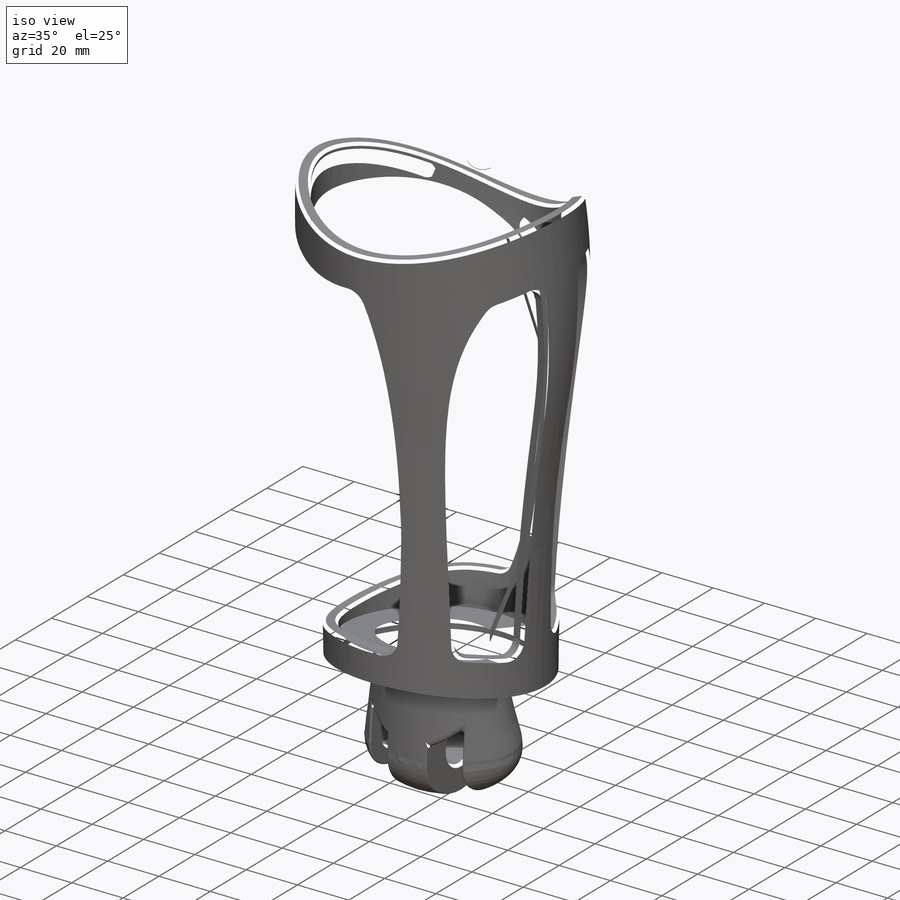
[diagram: iso view]
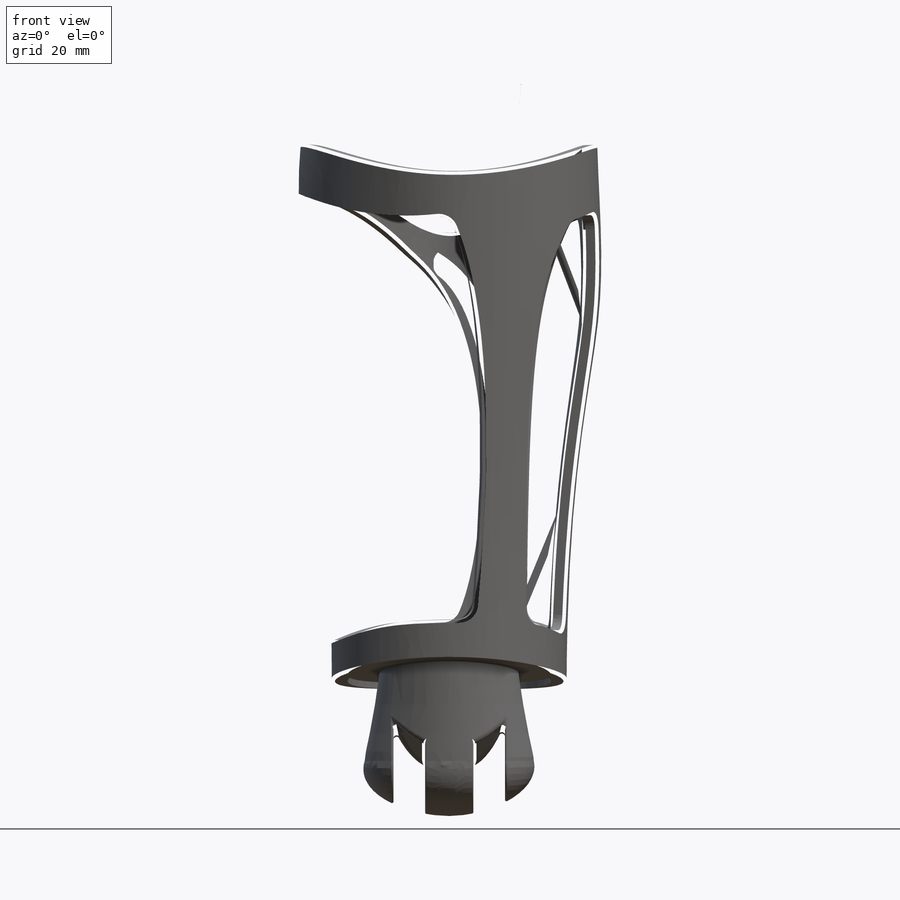
[diagram: front view]
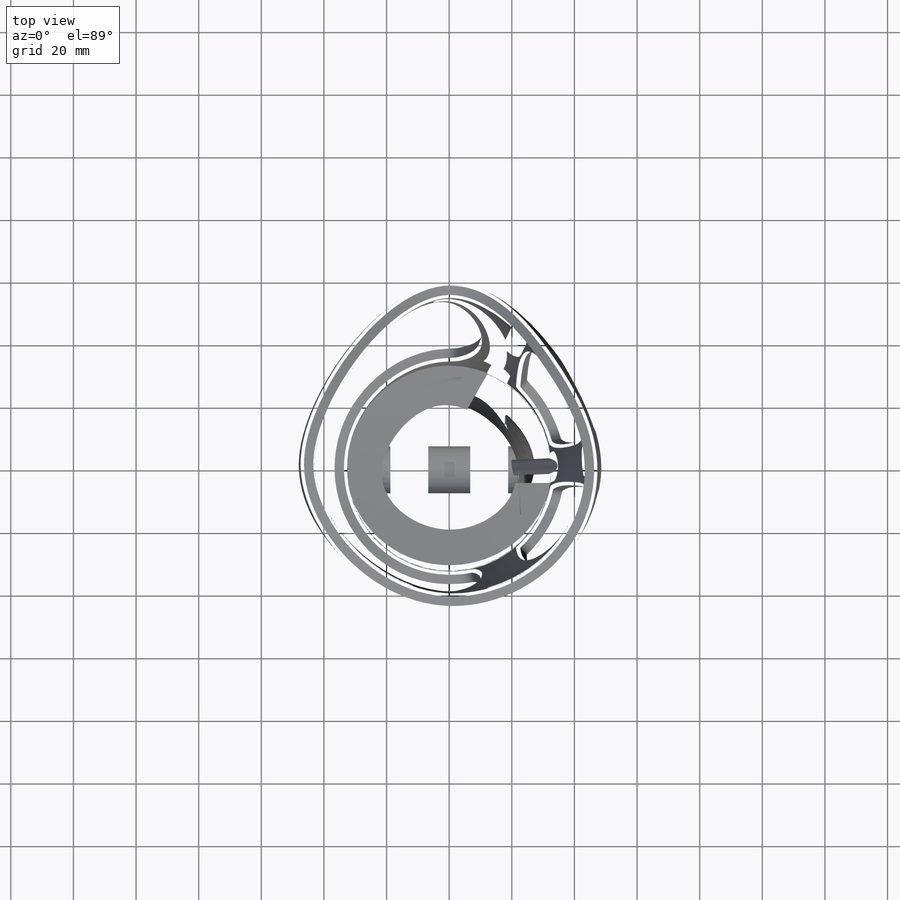
[diagram: top view]
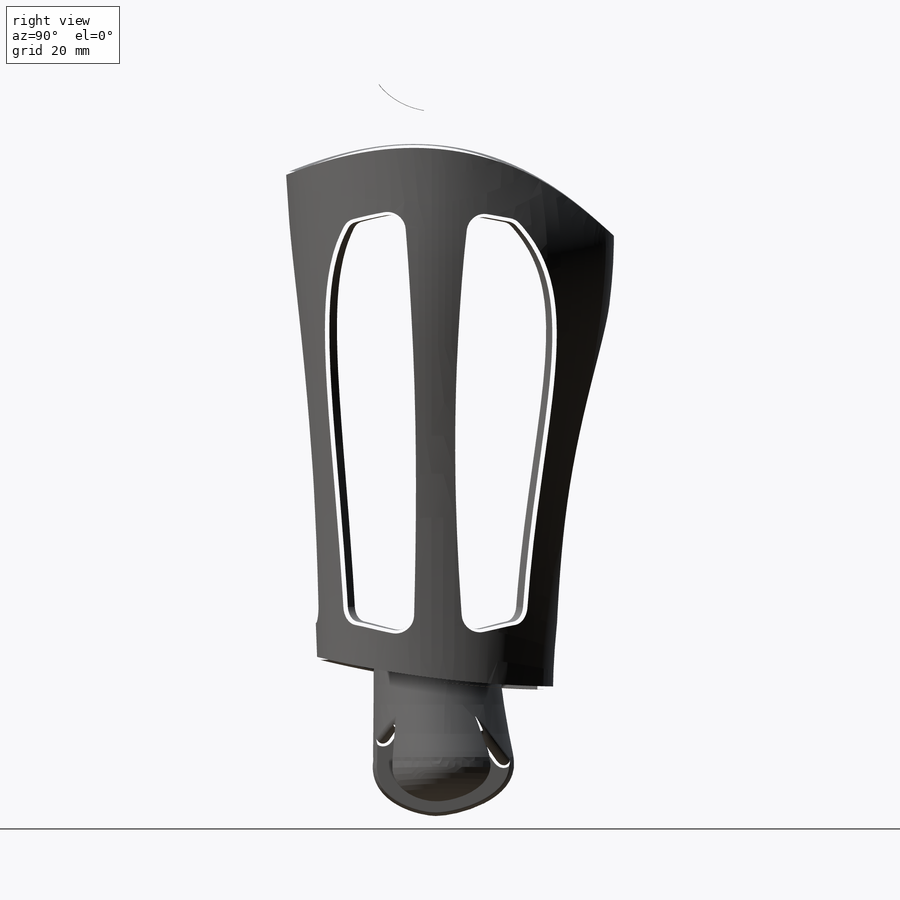
[diagram: right view]
SOLIDWORKS PART (.sldprt)
format: sldprt  version: not decoded by parser v0  size: 14,455,296 bytes
history: native  units: mm
features: sketch x73, plane x35, cut_extrude x9, cut_revolve x4, extrude x4, fillet x4, sweep x3, move_body x2, surface_op x2, material x1, boolean_combine x1, chamfer x1 + 8 further entries (+21 scaffold rows collapsed; 9 parser-record rows omitted)
feature tree (177):
  scaffold x21  (default folders/planes/origin — collapsed)
  material  "Material <nicht festgelegt>"
  plane  "Vorne"
  plane  "Oben"
  plane  "Rechts"
  plane  "Vorne-p-bein-rechts-v02"
  plane  "Oben-p-bein-rechts-v02"
  plane  "Rechts-p-bein-rechts-v02"
  plane  "Vorne-p-geometriemodel-bein-rechts-v02-p-bein-rechts-v02"
  plane  "Oben-p-geometriemodel-bein-rechts-v02-p-bein-rechts-v02"
  plane  "Rechts-p-geometriemodel-bein-rechts-v02-p-bein-rechts-v02"  Offset=60mm
  sketch  "Skizze1-p-geometriemodel-bein-rechts-v02-p-bein-rechts-v02"  dims[D1=20.0mm]
  sketch  "Skizze3-p-geometriemodel-bein-rechts-v02-p-bein-rechts-v02"  dims[D1=178.0mm]
  plane  "Ebene1-p-geometriemodel-bein-rechts-v02-p-bein-rechts-v02"
  "3D-Skizze3-p-geometriemodel-bein-rechts-v02-p-bein-rechts-v02"
  plane  "Ebene2-p-geometriemodel-bein-rechts-v02-p-bein-rechts-v02"
  plane  "Ebene3-p-geometriemodel-bein-rechts-v02-p-bein-rechts-v02"
  plane  "Ebene45-p-bein-rechts-v02"
  sketch  "Skizze50-p-bein-rechts-v02"  dims[D1=50.0mm D2=50.0mm D3=30.0mm D4=30.0mm D5=30.0mm D6=30.0mm]
  sketch  "Skizze51-p-bein-rechts-v02"  dims[D1=10.0mm D2=25.0mm D3=15.0mm D4=20.0mm D5=42.0mm D6=15.0mm]
  plane  "Ebene46-p-bein-rechts-v02"
  plane  "Ebene47-p-bein-rechts-v02"
  sketch  "Skizze52-p-bein-rechts-v02"
  sketch  "Skizze53-p-bein-rechts-v02"
  sketch  "Skizze54-p-bein-rechts-v02"  dims[D1=35.0mm D2=25.0mm]
  sketch  "Skizze55-p-bein-rechts-v02"  dims[D1=20.0mm]
  sketch  "Skizze56-p-bein-rechts-v02"  dims[D1=10.0mm D2=5.0mm D3=25.0mm D4=70.0mm D5=25.0mm D6=40.0mm D7=15.0mm]
  "3D-Skizze16-p-bein-rechts-v02"
  plane  "Ebene48-p-bein-rechts-v02"
  sketch  "Skizze57-p-bein-rechts-v02"  dims[D1=30.0mm D2=35.0mm D3=30.0mm D4=25.0mm]
  "3D-Skizze17-p-bein-rechts-v02"
  sketch  "Skizze58-p-bein-rechts-v02"  dims[c1.D4=~110.057695mm c1.D1=35.0mm c1.D2=35.0mm c2.D2=35.0deg c2.D3=70.0mm]
  sketch  "Skizze59-p-bein-rechts-v02"  dims[c1.D1=268.4mm c2.D1=60.0deg c2.D2=40.0mm c2.D3=268.4mm c3.D3=55.0deg]
  sketch  "Skizze60-p-bein-rechts-v02"  dims[D1=27.0mm D2=27.0mm D3=25.0mm D4=20.0mm]
  sketch  "Skizze61-p-bein-rechts-v02"  dims[D1=15.0mm D2=85.0mm]
  sketch  "Skizze62-p-bein-rechts-v02"  dims[D1=15.0mm]
  sketch  "Skizze63-p-bein-rechts-v02"  dims[c1.D1=85.0mm c1.D2=85.0mm c2.D1=42.5mm]
  "p-bein-rechts-v02"
  parser-record x9  (decoder bookkeeping rows leaked as tree rows — omitted from the tree; the rows remain in map.json)
  plane  "Vorne-p-untrerschenkel-hülle-v02"
  plane  "Oben-p-untrerschenkel-hülle-v02"
  plane  "Rechts-p-untrerschenkel-hülle-v02"
  plane  "Vorne-p-oberschenkel-hülle-v02-p-untrerschenkel-hülle-v02"
  plane  "Oben-p-oberschenkel-hülle-v02-p-untrerschenkel-hülle-v02"
  plane  "Rechts-p-oberschenkel-hülle-v02-p-untrerschenkel-hülle-v02"
  plane  "Ebene26-p-oberschenkel-hülle-v02-p-untrerschenkel-hülle-v02"
  plane  "Ebene27-p-oberschenkel-hülle-v02-p-untrerschenkel-hülle-v02"
  plane  "Ebene26-p-untrerschenkel-hülle-v02"
  plane  "Ebene58-p-untrerschenkel-hülle-v02"  Offset=60mm
  sketch  "Skizze44-p-oberschenkel-hülle-v02-p-untrerschenkel-hülle-v02"
  sketch  "Skizze45-p-oberschenkel-hülle-v02-p-untrerschenkel-hülle-v02"  dims[D1=80.0mm]
  sketch  "Skizze46-p-oberschenkel-hülle-v02-p-untrerschenkel-hülle-v02"
  sketch  "Skizze47-p-oberschenkel-hülle-v02-p-untrerschenkel-hülle-v02"  dims[D1=80.0mm D2=20.0mm]
  sketch  "Skizze49-p-oberschenkel-hülle-v02-p-untrerschenkel-hülle-v02"
  sketch  "Skizze50-p-oberschenkel-hülle-v02-p-untrerschenkel-hülle-v02"
  sketch  "Skizze51-p-oberschenkel-hülle-v02-p-untrerschenkel-hülle-v02"
  sketch  "Skizze52-p-oberschenkel-hülle-v02-p-untrerschenkel-hülle-v02"
  sketch  "Skizze62-p-oberschenkel-hülle-v02-p-untrerschenkel-hülle-v02"
  sketch  "Skizze63-p-oberschenkel-hülle-v02-p-untrerschenkel-hülle-v02"
  sketch  "Skizze65-p-oberschenkel-hülle-v02-p-untrerschenkel-hülle-v02"
  sketch  "Skizze66-p-oberschenkel-hülle-v02-p-untrerschenkel-hülle-v02"
  sketch  "Skizze69-p-oberschenkel-hülle-v02-p-untrerschenkel-hülle-v02"
  sketch  "Skizze70-p-oberschenkel-hülle-v02-p-untrerschenkel-hülle-v02"
  sketch  "Skizze71-p-oberschenkel-hülle-v02-p-untrerschenkel-hülle-v02"
  sketch  "Skizze72-p-oberschenkel-hülle-v02-p-untrerschenkel-hülle-v02"
  sketch  "Skizze106-p-untrerschenkel-hülle-v02"  dims[D1=80.0mm]
  sketch  "Skizze107-p-untrerschenkel-hülle-v02"  dims[D1=65.0mm]
  sketch  "Skizze108-p-untrerschenkel-hülle-v02"
  sketch  "Skizze109-p-untrerschenkel-hülle-v02"
  sketch  "Skizze110-p-untrerschenkel-hülle-v02"
  sketch  "Skizze116-p-untrerschenkel-hülle-v02"
  sketch  "Skizze117-p-untrerschenkel-hülle-v02"
  sketch  "Skizze121-p-untrerschenkel-hülle-v02"
  sketch  "Skizze122-p-untrerschenkel-hülle-v02"
  sketch  "Skizze124-p-untrerschenkel-hülle-v02"  dims[D1=~59.651949mm D2=112.0mm]
  sketch  "Skizze125-p-untrerschenkel-hülle-v02"
  sketch  "Skizze127-p-untrerschenkel-hülle-v02"
  sketch  "Skizze133-p-untrerschenkel-hülle-v02"
  "p-untrerschenkel-hülle-v02"
  move_body  "Körper-Verschieben/Kopieren3"
  "Deckungsgleich1"
  sketch  "Skizze37"  dims[D1=~17.612096mm]
  plane  "Ebene9"
  sketch  "Skizze38"
  sketch  "Skizze34"  dims[D1=8.0mm D2=84.0mm D3=15.0mm D4=50.0mm D5=50.0mm D6=9.0mm D7=9.0mm D8=5.0mm D9=5.0mm D10=5.0mm D11=5.0mm D12=35.0mm D13=0.5mm D14=20.0mm D15=0.5mm D16=35.0mm]
  cut_revolve  "Schnitt-Rotation2"  Angle=180deg
  sketch  "Skizze35"  dims[c1.D1=24.0mm c1.D2=26.0mm c2.D1=53.0mm c2.D2=49.0mm]
  cut_revolve  "Schnitt-Rotation3"  Angle=360deg
  sketch  "Skizze36"  dims[D1=14.2mm]
  extrude  "Aufsatz-Linear austragen1"  [1 undecoded]
  sketch  "Skizze39"  dims[D1=15.0mm D2=492.0mm]
  cut_extrude  "Schnitt-Linear austragen1"  Depth=44mm
  sketch  "Skizze40"  dims[c1.D1=16.0mm c1.D2=16.0mm c2.D1=20.0mm c2.D3=40.0mm c3.D3=50.0deg c3.D4=40.0mm c4.D4=50.0deg c4.D3=129.8mm c5.D3=35.0deg c5.D4=129.8mm c6.D4=35.0deg]
  "3D-Skizze1"
  plane  "Ebene1"  Offset=12.75mm
  plane  "Ebene2"  Offset=12.75mm
  sketch  "Skizze41"  dims[D1=0.0mm]
  cut_extrude  "Schnitt-Linear austragen3"  Depth=10.1mm
  sketch  "Skizze42"  dims[D1=0.0mm]
  cut_extrude  "Schnitt-Linear austragen4"  Depth=10.1mm
  sketch  "Skizze43"  dims[D1=150.0mm D2=35.0mm D3=26.1mm]
  plane  "Ebene7"
  sketch  "Skizze59"  dims[c1.D1=129.8mm c2.D1=2.5deg c2.D2=40.0mm c2.D3=26.1mm c2.D4=55.0mm]
  plane  "Ebene8"
  "3D-Skizze2"
  plane  "Ebene3"
  sketch  "Skizze45"  dims[D1=3.0mm]
  sweep  "Schnitt-Austragung1"
  fillet  "Verrundung1"  Radius=1.5mm
  sketch  "Skizze46"  dims[D1=3.0mm D2=42.5mm]
  cut_revolve  "Schnitt-Rotation5"  Angle=110deg
  sketch  "Skizze57"  dims[c1.D1=129.8mm c2.D1=32.0deg c2.D2=19.0mm c2.D3=7.5mm c2.D4=10.0mm c2.D5=15.0mm c2.D6=22.0mm c3.D1=10.0mm c4.D1=28.0deg c4.D2=~113.616273mm c5.D2=60.0deg]
  extrude  "Aufsatz-Linear austragen2"  Depth=45mm
  sketch  "Skizze44"  dims[D1=25.0mm D2=5.0mm D3=20.0mm D4=6.0mm D5=4.0mm D6=15.0mm]
  cut_revolve  "Schnitt-Rotation4"  Angle=360deg
  sketch  "Skizze58"  dims[c1.D4=4.0mm c1.D1=33.1mm c1.D2=30.0mm c1.D3=30.0mm c2.D1=5.0mm c2.D3=7.0mm]
  cut_extrude  "Schnitt-Linear austragen5"  Depth=18mm
  sketch  "Skizze60"  dims[c1.D1=21.5mm c1.D2=4.5mm c1.D3=~113.616273mm c2.D3=65.0deg c2.D4=15.0mm c2.D5=15.0mm]
  extrude  "Aufsatz-Linear austragen3"  Depth=40mm
  sketch  "Skizze61"  dims[c1.D1=4.0mm c1.D2=35.0mm c1.D3=30.0mm c1.D4=7.0mm c1.D5=30.0mm c2.D1=18.0mm c3.D1=4.0mm c4.D1=1.0mm]
  sketch  "Skizze62"  dims[D1=6.0mm D2=1.0mm]
  extrude  "Aufsatz-Linear austragen4"  Depth=2mm
  sketch  "Skizze63"  dims[D1=6.0mm]
  plane  "Ebene10"  Offset=10mm
  sketch  "Skizze64"  dims[D1=6.5mm D2=15.0mm]
  cut_extrude  "Schnitt-Linear austragen7"  Depth=3.5mm
  plane  "Ebene11"  Offset=9mm
  sketch  "Skizze65"  dims[D1=6.5mm D2=20.0mm]
  cut_extrude  "Schnitt-Linear austragen8"  Depth=3.5mm
  surface_op  "Oberfläche-Zusammenfügen2"
  surface_op  "Oberfläche-Zusammenfügen3"
  sweep  "Oberfläche-Offset2"
  sketch  "Skizze139"  dims[D1=40.0mm D2=20.0mm D3=60.0mm D4=60.0mm D5=20.0mm]
  fillet  "Wanddicke auftragen2"  Radius=5mm
  fillet  "Wanddicke auftragen3"  Radius=5mm
  sketch  "Skizze140"  dims[c1.D1=45.0mm c1.D2=80.0mm c1.D3=140.0mm c1.D4=25.0mm c2.D1=5.0mm]
  sketch  "Skizze141"
  cut_extrude  "Verstärkungsrippe4"  Depth=5mm
  plane  "Ebene12"
  sketch  "Skizze144"  dims[D1=430.0mm D2=12.0mm D3=5.0mm D4=335.0mm D5=5.0mm]
  sweep  "Oberfläche-Offset3"
  fillet  "Wanddicke auftragen4"  Radius=5mm
  boolean_combine  "Kombinieren3"
  sketch  "Skizze142"  dims[c1.D1=~323.962331mm c2.D1=9.0deg c2.D2=30.0mm c2.D3=170.0mm]
  cut_extrude  "Verstärkungsrippe5"  Depth=5mm
  sketch  "Skizze143"  dims[c1.D1=~323.962331mm c2.D1=40.0deg c2.D2=50.0mm c2.D3=20.0mm]
  cut_extrude  "Verstärkungsrippe6"  Depth=5mm
  chamfer  "Fase1"  Distance=8mm Angle=25deg
  move_body  "Körper-Verschieben/Kopieren1"
decode coverage: 66 of 103 modeling features carry decoded parameters; 8 rows unclassified (native names shown)
note: ~ marks probable driven/reference dimensions
note: 1 parameter value undecoded
note: suppression state not decoded; provenance and decode notes live in map.json
